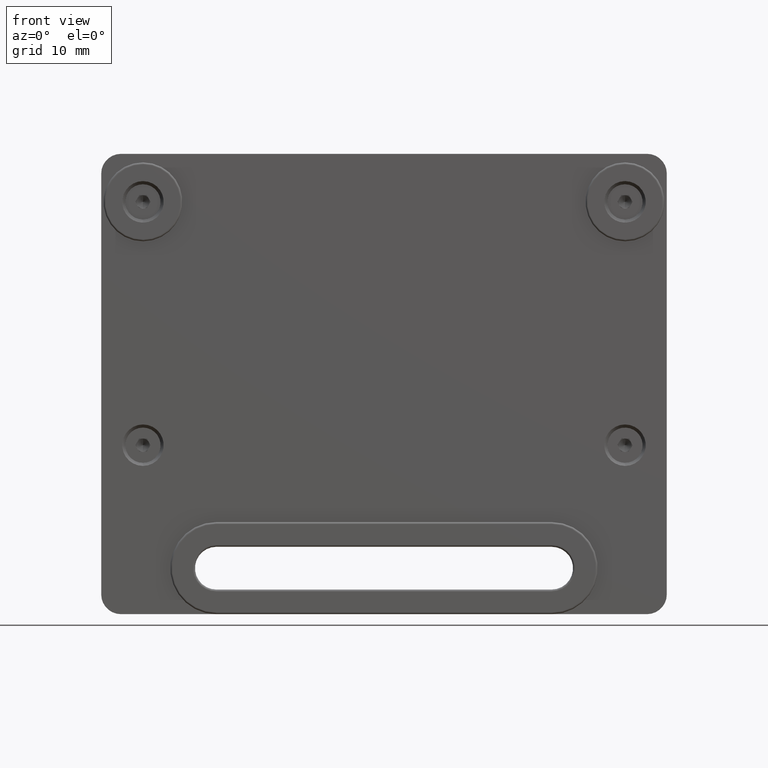
[diagram: clean part render]
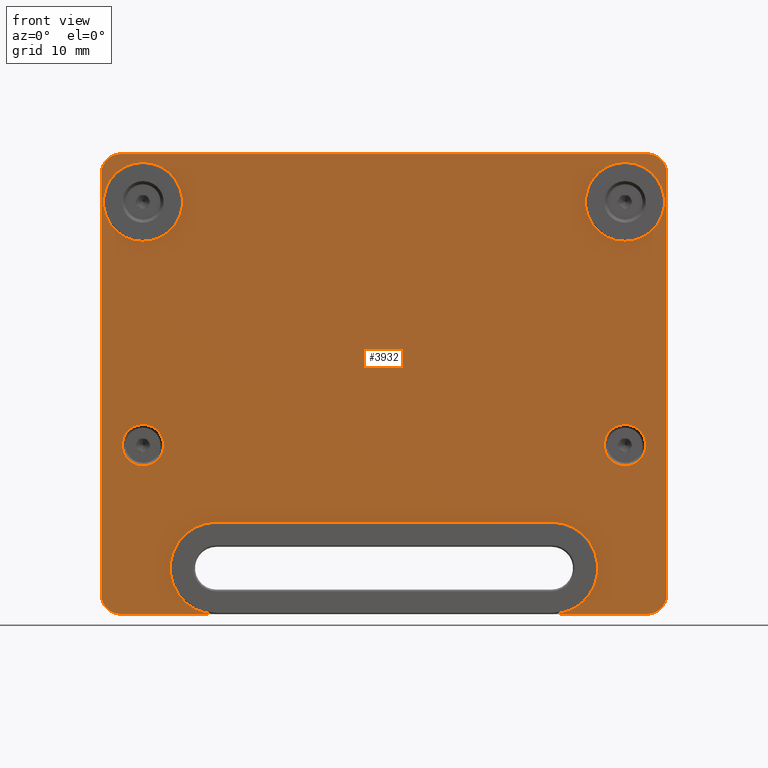
[diagram: same view with one face highlighted and labeled with its STEP entity id]
A machine part, front view. The second image highlights one B-rep face of the part: STEP entity #3932.
In plain terms, the highlighted planar face has unit normal (0, -1, 0).
Its self-contained STEP definition (entity closure, byte-faithful):
#214 = CARTESIAN_POINT ( 'NONE',  ( 43.00000000000000000, 0.5999999999999999778, 22.80000000000000071 ) ) ;
#312 = DIRECTION ( 'NONE',  ( 0.000000000000000000, -1.000000000000000000, 0.000000000000000000 ) ) ;
#384 = CIRCLE ( 'NONE', #8933, 5.999999999999994671 ) ;
#583 = CIRCLE ( 'NONE', #18131, 5.999999999999994671 ) ;
#609 = EDGE_CURVE ( 'NONE', #24447, #26461, #583, .T. ) ;
#711 = DIRECTION ( 'NONE',  ( 0.000000000000000000, 0.000000000000000000, -1.000000000000000000 ) ) ;
#856 = ORIENTED_EDGE ( 'NONE', *, *, #609, .F. ) ;
#1134 = AXIS2_PLACEMENT_3D ( 'NONE', #22826, #1420, #25318 ) ;
#1348 = DIRECTION ( 'NONE',  ( 0.000000000000000000, 0.000000000000000000, -1.000000000000000000 ) ) ;
#1420 = DIRECTION ( 'NONE',  ( 0.000000000000000000, -1.000000000000000000, 0.000000000000000000 ) ) ;
#1451 = EDGE_LOOP ( 'NONE', ( #856, #11033 ) ) ;
#1609 = DIRECTION ( 'NONE',  ( 1.000000000000000000, 0.000000000000000000, 0.000000000000000000 ) ) ;
#1750 = VECTOR ( 'NONE', #28373, 1000.000000000000000 ) ;
#1776 = VERTEX_POINT ( 'NONE', #22851 ) ;
#1833 = CIRCLE ( 'NONE', #2819, 6.999999999999999112 ) ;
#1847 = AXIS2_PLACEMENT_3D ( 'NONE', #5185, #3156, #5653 ) ;
#2076 = FACE_OUTER_BOUND ( 'NONE', #22856, .T. ) ;
#2531 = VERTEX_POINT ( 'NONE', #27099 ) ;
#2819 = AXIS2_PLACEMENT_3D ( 'NONE', #16035, #25035, #20255 ) ;
#2845 = VERTEX_POINT ( 'NONE', #17193 ) ;
#2875 = DIRECTION ( 'NONE',  ( 1.000000000000000000, 0.000000000000000000, 0.000000000000000000 ) ) ;
#3156 = DIRECTION ( 'NONE',  ( -0.000000000000000000, -1.000000000000000000, -0.000000000000000000 ) ) ;
#3208 = CIRCLE ( 'NONE', #5695, 6.999999999999999112 ) ;
#3366 = VECTOR ( 'NONE', #17310, 1000.000000000000000 ) ;
#3468 = CARTESIAN_POINT ( 'NONE',  ( 36.65000000000000568, 0.5999999999999999778, 24.50000000000000000 ) ) ;
#3719 = EDGE_CURVE ( 'NONE', #20317, #28064, #17482, .T. ) ;
#3916 = ORIENTED_EDGE ( 'NONE', *, *, #9747, .T. ) ;
#3932 = ADVANCED_FACE ( 'NONE', ( #16349, #30507, #23504, #21174, #2076 ), #30835, .T. ) ;
#4123 = CARTESIAN_POINT ( 'NONE',  ( -25.50000000000000000, 0.5999999999999999778, -44.20000000000000284 ) ) ;
#5072 = CARTESIAN_POINT ( 'NONE',  ( 0.000000000000000000, 0.5999999999999999778, 25.80000000000000071 ) ) ;
#5175 = EDGE_CURVE ( 'NONE', #20764, #13103, #6295, .T. ) ;
#5185 = CARTESIAN_POINT ( 'NONE',  ( 36.65000000000000568, 0.5999999999999964251, -18.50000000000000711 ) ) ;
#5418 = DIRECTION ( 'NONE',  ( 0.000000000000000000, -1.000000000000000000, 0.000000000000000000 ) ) ;
#5653 = DIRECTION ( 'NONE',  ( 0.000000000000000000, 0.000000000000000000, -1.000000000000000000 ) ) ;
#5695 = AXIS2_PLACEMENT_3D ( 'NONE', #9466, #20887, #11636 ) ;
#5783 = AXIS2_PLACEMENT_3D ( 'NONE', #27774, #20640, #15341 ) ;
#5833 = CIRCLE ( 'NONE', #1847, 3.149999999999999911 ) ;
#5893 = DIRECTION ( 'NONE',  ( 0.000000000000000000, 0.000000000000000000, -1.000000000000000000 ) ) ;
#6184 = DIRECTION ( 'NONE',  ( -0.000000000000000000, -1.000000000000000000, -0.000000000000000000 ) ) ;
#6238 = DIRECTION ( 'NONE',  ( 1.000000000000000000, 0.000000000000000000, 2.040851148208008491E-16 ) ) ;
#6276 = CARTESIAN_POINT ( 'NONE',  ( 43.00000000000000000, 0.5999999999999999778, -41.20000000000000284 ) ) ;
#6295 = CIRCLE ( 'NONE', #8815, 3.000000000000002665 ) ;
#6300 = VERTEX_POINT ( 'NONE', #214 ) ;
#7520 = EDGE_CURVE ( 'NONE', #1776, #15387, #1833, .T. ) ;
#7804 = CIRCLE ( 'NONE', #23290, 3.000000000000002665 ) ;
#7951 = DIRECTION ( 'NONE',  ( 0.000000000000000000, -1.000000000000000000, 0.000000000000000000 ) ) ;
#8287 = DIRECTION ( 'NONE',  ( 0.000000000000000000, -1.000000000000000000, 0.000000000000000000 ) ) ;
#8457 = ORIENTED_EDGE ( 'NONE', *, *, #5175, .T. ) ;
#8670 = VERTEX_POINT ( 'NONE', #4123 ) ;
#8734 = CARTESIAN_POINT ( 'NONE',  ( -36.65000000000000568, 0.5999999999999999778, 18.50000000000000711 ) ) ;
#8815 = AXIS2_PLACEMENT_3D ( 'NONE', #17707, #8287, #27158 ) ;
#8923 = AXIS2_PLACEMENT_3D ( 'NONE', #17822, #29792, #5893 ) ;
#8933 = AXIS2_PLACEMENT_3D ( 'NONE', #28011, #30222, #23054 ) ;
#8952 = DIRECTION ( 'NONE',  ( 0.000000000000000000, 0.000000000000000000, -1.000000000000000000 ) ) ;
#9249 = EDGE_CURVE ( 'NONE', #2531, #8670, #23026, .T. ) ;
#9388 = CIRCLE ( 'NONE', #10375, 3.149999999999999911 ) ;
#9466 = CARTESIAN_POINT ( 'NONE',  ( -25.50000000000000000, 0.5999999999999999778, -37.19999999999998863 ) ) ;
#9617 = CARTESIAN_POINT ( 'NONE',  ( -36.65000000000000568, 0.5999999999999999778, 12.50000000000000711 ) ) ;
#9620 = VECTOR ( 'NONE', #6238, 1000.000000000000000 ) ;
#9747 = EDGE_CURVE ( 'NONE', #6300, #20317, #24753, .T. ) ;
#9826 = AXIS2_PLACEMENT_3D ( 'NONE', #29627, #6184, #1348 ) ;
#9938 = CARTESIAN_POINT ( 'NONE',  ( -36.65000000000000568, 0.5999999999999964251, -15.35000000000000675 ) ) ;
#9986 = EDGE_CURVE ( 'NONE', #15263, #29326, #19356, .T. ) ;
#10044 = CARTESIAN_POINT ( 'NONE',  ( -43.00000000000000000, 0.5999999999999999778, -41.20000000000000284 ) ) ;
#10129 = EDGE_CURVE ( 'NONE', #29326, #15263, #5833, .T. ) ;
#10375 = AXIS2_PLACEMENT_3D ( 'NONE', #11269, #20835, #8952 ) ;
#10732 = ORIENTED_EDGE ( 'NONE', *, *, #30428, .F. ) ;
#11033 = ORIENTED_EDGE ( 'NONE', *, *, #21025, .F. ) ;
#11153 = EDGE_CURVE ( 'NONE', #2845, #15147, #23975, .T. ) ;
#11269 = CARTESIAN_POINT ( 'NONE',  ( -36.65000000000000568, 0.5999999999999964251, -18.50000000000000711 ) ) ;
#11636 = DIRECTION ( 'NONE',  ( 0.000000000000000000, 0.000000000000000000, -1.000000000000000000 ) ) ;
#12742 = AXIS2_PLACEMENT_3D ( 'NONE', #28841, #5418, #19093 ) ;
#12785 = ORIENTED_EDGE ( 'NONE', *, *, #28608, .T. ) ;
#12920 = ORIENTED_EDGE ( 'NONE', *, *, #29490, .T. ) ;
#13103 = VERTEX_POINT ( 'NONE', #6276 ) ;
#13135 = DIRECTION ( 'NONE',  ( 0.000000000000000000, 0.000000000000000000, -1.000000000000000000 ) ) ;
#13738 = DIRECTION ( 'NONE',  ( 0.000000000000000000, -1.000000000000000000, 0.000000000000000000 ) ) ;
#14133 = DIRECTION ( 'NONE',  ( 0.000000000000000000, 0.000000000000000000, -1.000000000000000000 ) ) ;
#14287 = ORIENTED_EDGE ( 'NONE', *, *, #24507, .F. ) ;
#14360 = CARTESIAN_POINT ( 'NONE',  ( 39.99999999999999289, 0.5999999999999999778, -44.20000000000000284 ) ) ;
#14796 = EDGE_CURVE ( 'NONE', #1776, #20764, #17016, .T. ) ;
#15147 = VERTEX_POINT ( 'NONE', #10044 ) ;
#15225 = ORIENTED_EDGE ( 'NONE', *, *, #7520, .F. ) ;
#15263 = VERTEX_POINT ( 'NONE', #29867 ) ;
#15291 = ORIENTED_EDGE ( 'NONE', *, *, #22823, .T. ) ;
#15341 = DIRECTION ( 'NONE',  ( 0.000000000000000000, 0.000000000000000000, -1.000000000000000000 ) ) ;
#15387 = VERTEX_POINT ( 'NONE', #20650 ) ;
#15443 = CIRCLE ( 'NONE', #8923, 3.149999999999999911 ) ;
#15977 = CARTESIAN_POINT ( 'NONE',  ( 43.00000000000000000, 0.5999999999999999778, 0.000000000000000000 ) ) ;
#16002 = LINE ( 'NONE', #27799, #9620 ) ;
#16035 = CARTESIAN_POINT ( 'NONE',  ( 25.50000000000000000, 0.5999999999999999778, -37.19999999999998153 ) ) ;
#16050 = CARTESIAN_POINT ( 'NONE',  ( 0.000000000000000000, 0.5999999999999999778, -44.20000000000000284 ) ) ;
#16061 = ORIENTED_EDGE ( 'NONE', *, *, #22900, .T. ) ;
#16349 = FACE_BOUND ( 'NONE', #25878, .T. ) ;
#16351 = CARTESIAN_POINT ( 'NONE',  ( -39.99999999999999289, 0.5999999999999999778, 25.80000000000000782 ) ) ;
#17016 = LINE ( 'NONE', #24283, #24395 ) ;
#17193 = CARTESIAN_POINT ( 'NONE',  ( -43.00000000000000000, 0.5999999999999999778, 22.80000000000000071 ) ) ;
#17211 = VERTEX_POINT ( 'NONE', #25732 ) ;
#17310 = DIRECTION ( 'NONE',  ( -1.000000000000000000, 0.000000000000000000, 0.000000000000000000 ) ) ;
#17482 = LINE ( 'NONE', #5072, #3366 ) ;
#17565 = CARTESIAN_POINT ( 'NONE',  ( 36.65000000000000568, 0.5999999999999964251, -15.35000000000000675 ) ) ;
#17707 = CARTESIAN_POINT ( 'NONE',  ( 39.99999999999999289, 0.5999999999999999778, -41.20000000000000284 ) ) ;
#17714 = ORIENTED_EDGE ( 'NONE', *, *, #11153, .T. ) ;
#17822 = CARTESIAN_POINT ( 'NONE',  ( -36.65000000000000568, 0.5999999999999964251, -18.50000000000000711 ) ) ;
#18131 = AXIS2_PLACEMENT_3D ( 'NONE', #26658, #7951, #711 ) ;
#18157 = DIRECTION ( 'NONE',  ( 0.000000000000000000, -1.000000000000000000, 0.000000000000000000 ) ) ;
#18430 = ORIENTED_EDGE ( 'NONE', *, *, #9249, .T. ) ;
#18951 = DIRECTION ( 'NONE',  ( 0.000000000000000000, 0.000000000000000000, -1.000000000000000000 ) ) ;
#19093 = DIRECTION ( 'NONE',  ( 0.000000000000000000, 0.000000000000000000, -1.000000000000000000 ) ) ;
#19161 = CIRCLE ( 'NONE', #1134, 3.000000000000002665 ) ;
#19356 = CIRCLE ( 'NONE', #9826, 3.149999999999999911 ) ;
#19485 = DIRECTION ( 'NONE',  ( 0.000000000000000000, -0.000000000000000000, -1.000000000000000000 ) ) ;
#19751 = VERTEX_POINT ( 'NONE', #9617 ) ;
#19785 = CIRCLE ( 'NONE', #12742, 5.999999999999998224 ) ;
#20255 = DIRECTION ( 'NONE',  ( 0.000000000000000000, 0.000000000000000000, -1.000000000000000000 ) ) ;
#20264 = AXIS2_PLACEMENT_3D ( 'NONE', #26442, #312, #19485 ) ;
#20317 = VERTEX_POINT ( 'NONE', #28982 ) ;
#20640 = DIRECTION ( 'NONE',  ( 0.000000000000000000, -1.000000000000000000, 0.000000000000000000 ) ) ;
#20650 = CARTESIAN_POINT ( 'NONE',  ( 25.50000000000000000, 0.5999999999999999778, -30.19999999999998153 ) ) ;
#20764 = VERTEX_POINT ( 'NONE', #14360 ) ;
#20794 = CARTESIAN_POINT ( 'NONE',  ( -36.65000000000000568, 0.5999999999999964251, -21.65000000000000568 ) ) ;
#20835 = DIRECTION ( 'NONE',  ( -0.000000000000000000, -1.000000000000000000, -0.000000000000000000 ) ) ;
#20887 = DIRECTION ( 'NONE',  ( 0.000000000000000000, -1.000000000000000000, 0.000000000000000000 ) ) ;
#21025 = EDGE_CURVE ( 'NONE', #26461, #24447, #384, .T. ) ;
#21101 = LINE ( 'NONE', #15977, #1750 ) ;
#21174 = FACE_BOUND ( 'NONE', #1451, .T. ) ;
#21177 = ORIENTED_EDGE ( 'NONE', *, *, #9986, .F. ) ;
#22101 = AXIS2_PLACEMENT_3D ( 'NONE', #8734, #18157, #13135 ) ;
#22823 = EDGE_CURVE ( 'NONE', #17211, #15387, #16002, .T. ) ;
#22826 = CARTESIAN_POINT ( 'NONE',  ( -39.99999999999999289, 0.5999999999999999778, 22.80000000000000071 ) ) ;
#22851 = CARTESIAN_POINT ( 'NONE',  ( 25.50000000000000000, 0.5999999999999999778, -44.20000000000000284 ) ) ;
#22856 = EDGE_LOOP ( 'NONE', ( #15225, #29187, #8457, #12785, #3916, #24295, #16061, #17714, #12920, #18430, #30373, #15291 ) ) ;
#22900 = EDGE_CURVE ( 'NONE', #28064, #2845, #19161, .T. ) ;
#23026 = LINE ( 'NONE', #16050, #30710 ) ;
#23054 = DIRECTION ( 'NONE',  ( 0.000000000000000000, 0.000000000000000000, -1.000000000000000000 ) ) ;
#23290 = AXIS2_PLACEMENT_3D ( 'NONE', #23894, #13738, #18951 ) ;
#23362 = ORIENTED_EDGE ( 'NONE', *, *, #30611, .F. ) ;
#23504 = FACE_BOUND ( 'NONE', #24599, .T. ) ;
#23552 = VECTOR ( 'NONE', #14133, 1000.000000000000000 ) ;
#23889 = EDGE_LOOP ( 'NONE', ( #23362, #10732 ) ) ;
#23894 = CARTESIAN_POINT ( 'NONE',  ( -39.99999999999999289, 0.5999999999999999778, -41.20000000000000284 ) ) ;
#23975 = LINE ( 'NONE', #28452, #23552 ) ;
#24283 = CARTESIAN_POINT ( 'NONE',  ( 0.000000000000000000, 0.5999999999999999778, -44.20000000000000284 ) ) ;
#24295 = ORIENTED_EDGE ( 'NONE', *, *, #3719, .T. ) ;
#24395 = VECTOR ( 'NONE', #2875, 1000.000000000000000 ) ;
#24447 = VERTEX_POINT ( 'NONE', #30745 ) ;
#24507 = EDGE_CURVE ( 'NONE', #25298, #19751, #19785, .T. ) ;
#24599 = EDGE_LOOP ( 'NONE', ( #29937, #14287 ) ) ;
#24753 = CIRCLE ( 'NONE', #5783, 3.000000000000002665 ) ;
#25035 = DIRECTION ( 'NONE',  ( 0.000000000000000000, -1.000000000000000000, 0.000000000000000000 ) ) ;
#25070 = EDGE_CURVE ( 'NONE', #19751, #25298, #29026, .T. ) ;
#25298 = VERTEX_POINT ( 'NONE', #29625 ) ;
#25318 = DIRECTION ( 'NONE',  ( 0.000000000000000000, 0.000000000000000000, -1.000000000000000000 ) ) ;
#25732 = CARTESIAN_POINT ( 'NONE',  ( -25.50000000000000000, 0.5999999999999999778, -30.19999999999999218 ) ) ;
#25878 = EDGE_LOOP ( 'NONE', ( #21177, #27812 ) ) ;
#26442 = CARTESIAN_POINT ( 'NONE',  ( 0.000000000000000000, 0.5999999999999999778, 0.000000000000000000 ) ) ;
#26461 = VERTEX_POINT ( 'NONE', #3468 ) ;
#26658 = CARTESIAN_POINT ( 'NONE',  ( 36.65000000000000568, 0.5999999999999999778, 18.50000000000000711 ) ) ;
#26671 = VERTEX_POINT ( 'NONE', #20794 ) ;
#27099 = CARTESIAN_POINT ( 'NONE',  ( -39.99999999999999289, 0.5999999999999999778, -44.20000000000000284 ) ) ;
#27158 = DIRECTION ( 'NONE',  ( 0.000000000000000000, 0.000000000000000000, -1.000000000000000000 ) ) ;
#27326 = EDGE_CURVE ( 'NONE', #17211, #8670, #3208, .T. ) ;
#27774 = CARTESIAN_POINT ( 'NONE',  ( 39.99999999999999289, 0.5999999999999999778, 22.80000000000000071 ) ) ;
#27799 = CARTESIAN_POINT ( 'NONE',  ( 6.163370467588182932E-15, 0.5999999999999999778, -30.19999999999998508 ) ) ;
#27812 = ORIENTED_EDGE ( 'NONE', *, *, #10129, .F. ) ;
#28011 = CARTESIAN_POINT ( 'NONE',  ( 36.65000000000000568, 0.5999999999999999778, 18.50000000000000711 ) ) ;
#28064 = VERTEX_POINT ( 'NONE', #16351 ) ;
#28373 = DIRECTION ( 'NONE',  ( -0.000000000000000000, 0.000000000000000000, 1.000000000000000000 ) ) ;
#28452 = CARTESIAN_POINT ( 'NONE',  ( -43.00000000000000000, 0.5999999999999999778, 0.000000000000000000 ) ) ;
#28608 = EDGE_CURVE ( 'NONE', #13103, #6300, #21101, .T. ) ;
#28841 = CARTESIAN_POINT ( 'NONE',  ( -36.65000000000000568, 0.5999999999999999778, 18.50000000000000711 ) ) ;
#28982 = CARTESIAN_POINT ( 'NONE',  ( 39.99999999999999289, 0.5999999999999999778, 25.80000000000000071 ) ) ;
#29026 = CIRCLE ( 'NONE', #22101, 5.999999999999998224 ) ;
#29187 = ORIENTED_EDGE ( 'NONE', *, *, #14796, .T. ) ;
#29326 = VERTEX_POINT ( 'NONE', #17565 ) ;
#29490 = EDGE_CURVE ( 'NONE', #15147, #2531, #7804, .T. ) ;
#29625 = CARTESIAN_POINT ( 'NONE',  ( -36.65000000000000568, 0.5999999999999999778, 24.50000000000000711 ) ) ;
#29627 = CARTESIAN_POINT ( 'NONE',  ( 36.65000000000000568, 0.5999999999999964251, -18.50000000000000711 ) ) ;
#29792 = DIRECTION ( 'NONE',  ( -0.000000000000000000, -1.000000000000000000, -0.000000000000000000 ) ) ;
#29867 = CARTESIAN_POINT ( 'NONE',  ( 36.65000000000000568, 0.5999999999999964251, -21.65000000000000568 ) ) ;
#29914 = VERTEX_POINT ( 'NONE', #9938 ) ;
#29937 = ORIENTED_EDGE ( 'NONE', *, *, #25070, .F. ) ;
#30222 = DIRECTION ( 'NONE',  ( 0.000000000000000000, -1.000000000000000000, 0.000000000000000000 ) ) ;
#30373 = ORIENTED_EDGE ( 'NONE', *, *, #27326, .F. ) ;
#30428 = EDGE_CURVE ( 'NONE', #29914, #26671, #9388, .T. ) ;
#30507 = FACE_BOUND ( 'NONE', #23889, .T. ) ;
#30611 = EDGE_CURVE ( 'NONE', #26671, #29914, #15443, .T. ) ;
#30710 = VECTOR ( 'NONE', #1609, 1000.000000000000000 ) ;
#30745 = CARTESIAN_POINT ( 'NONE',  ( 36.65000000000000568, 0.5999999999999999778, 12.50000000000001066 ) ) ;
#30835 = PLANE ( 'NONE',  #20264 ) ;